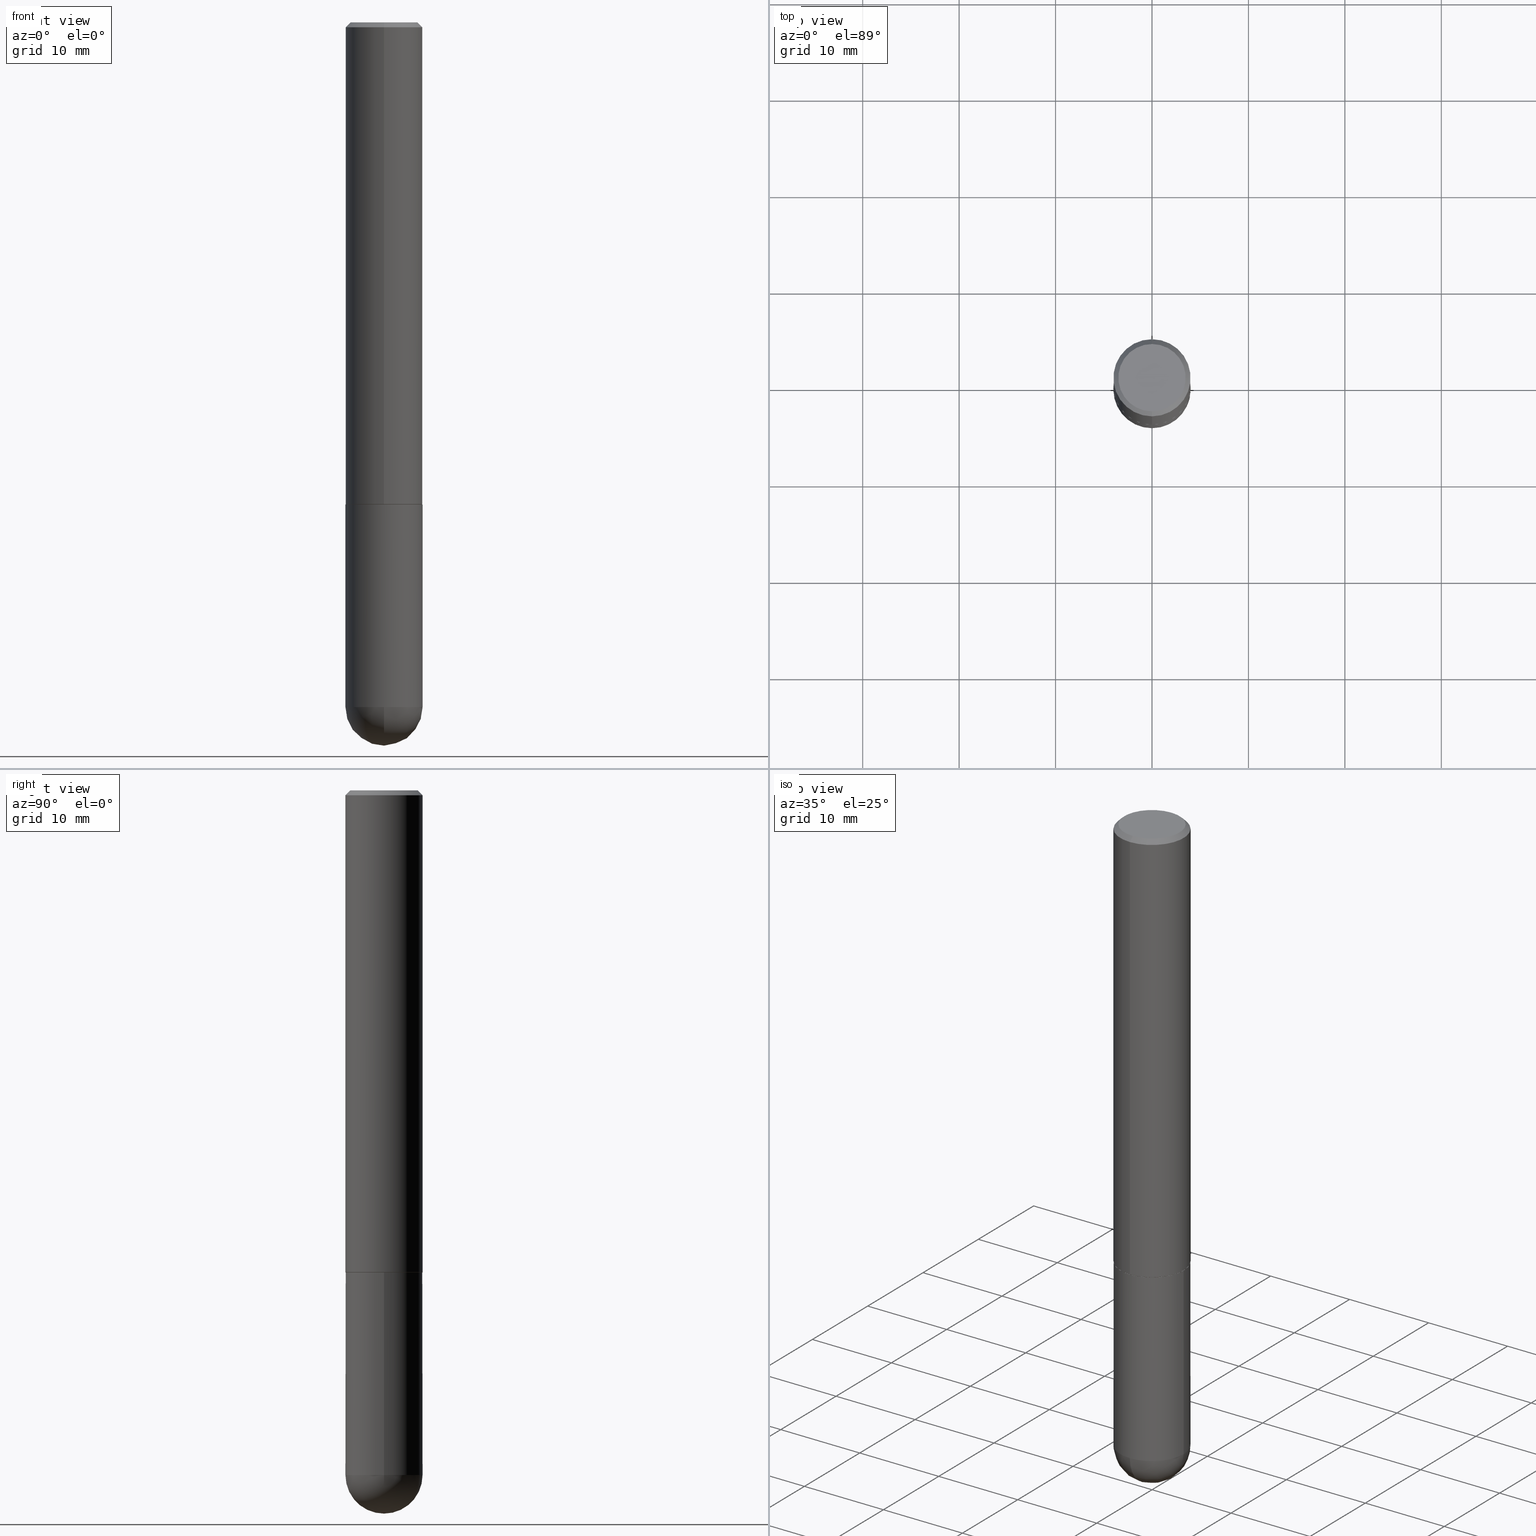
[diagram: canonical four-view strip — front | top / right | iso, engineering-drawing reading convention]
A machine part, canonical four-view strip (front | top / right | iso — engineering-drawing reading convention). The complete STEP part file that produces these views, byte-faithful:
ISO-10303-21;
HEADER;
FILE_DESCRIPTION (( 'STEP AP203' ),
    '1' );
FILE_NAME ('49548.STEP',
    '2024-04-10T12:20:48',
    ( '' ),
    ( '' ),
    'SwSTEP 2.0',
    'SolidWorks 2023',
    '' );
FILE_SCHEMA (( 'CONFIG_CONTROL_DESIGN' ));
ENDSEC;

DATA;
#1 = COORDINATED_UNIVERSAL_TIME_OFFSET ( 5, 0, .BEHIND. ) ;
#2 = EDGE_LOOP ( 'NONE', ( #104, #300, #126, #394 ) ) ;
#3 = EDGE_CURVE ( 'NONE', #317, #253, #392, .T. ) ;
#4 = EDGE_LOOP ( 'NONE', ( #63, #42, #235, #12 ) ) ;
#5 = CARTESIAN_POINT ( 'NONE',  ( 6.896594947516873652E-29, -1.077418437193280573E-14, -2.952799999999999869 ) ) ;
#6 = SECURITY_CLASSIFICATION ( '', '', #347 ) ;
#7 = DIRECTION ( 'NONE',  ( -2.452606242276133797E-29, 3.481260124123203654E-15, 1.000000000000000000 ) ) ;
#8 = EDGE_CURVE ( 'NONE', #360, #367, #322, .T. ) ;
#9 = AXIS2_PLACEMENT_3D ( 'NONE', #14, #293, #10 ) ;
#10 = DIRECTION ( 'NONE',  ( -6.982962677686265922E-15, -1.000000000000000000, 3.469013325287954477E-15 ) ) ;
#11 = DIRECTION ( 'NONE',  ( 1.000000000000000000, -6.982962677686265922E-15, 4.883557194083112340E-29 ) ) ;
#12 = ORIENTED_EDGE ( 'NONE', *, *, #370, .F. ) ;
#13 = ADVANCED_FACE ( 'NONE', ( #278 ), #339, .F. ) ;
#14 = CARTESIAN_POINT ( 'NONE',  ( 4.905212484552274391E-31, -6.962520248246417464E-17, -0.02000000000000003164 ) ) ;
#15 = DIRECTION ( 'NONE',  ( 2.452606242276133237E-29, -3.481260124123204048E-15, -1.000000000000000000 ) ) ;
#16 = PRODUCT_RELATED_PRODUCT_CATEGORY ( 'detail', '', ( #120 ) ) ;
#17 = CARTESIAN_POINT ( 'NONE',  ( 0.000000000000000000, 0.000000000000000000, 0.000000000000000000 ) ) ;
#18 = DIRECTION ( 'NONE',  ( -6.982962677686264344E-15, -1.000000000000000000, 3.481260124123203654E-15 ) ) ;
#19 = CARTESIAN_POINT ( 'NONE',  ( 4.825502781678292621E-29, -6.849379294212400691E-15, -1.967499999999999805 ) ) ;
#20 = PERSON_AND_ORGANIZATION_ROLE ( 'design_supplier' ) ;
#21 = FACE_OUTER_BOUND ( 'NONE', #196, .T. ) ;
#22 = AXIS2_PLACEMENT_3D ( 'NONE', #306, #15, #398 ) ;
#23 = FACE_OUTER_BOUND ( 'NONE', #258, .T. ) ;
#24 = DIRECTION ( 'NONE',  ( -7.105427357601000281E-15, -1.000000000000000000, 0.000000000000000000 ) ) ;
#25 = CARTESIAN_POINT ( 'NONE',  ( 0.000000000000000000, 0.000000000000000000, 0.000000000000000000 ) ) ;
#26 = COORDINATED_UNIVERSAL_TIME_OFFSET ( 5, 0, .BEHIND. ) ;
#27 = DIRECTION ( 'NONE',  ( 1.000000000000000000, -6.982962677686265922E-15, 4.876176775795935232E-29 ) ) ;
#28 = CONICAL_SURFACE ( 'NONE', #145, 0.1564999999999999447, 0.7853981633973970977 ) ;
#29 = VECTOR ( 'NONE', #406, 39.37007874015748143 ) ;
#30 = CARTESIAN_POINT ( 'NONE',  ( -1.092833659057852162E-15, -0.1565000000000068281, -1.968499999999999472 ) ) ;
#31 = ORIENTED_EDGE ( 'NONE', *, *, #175, .T. ) ;
#32 = DATE_AND_TIME ( #356, #292 ) ;
#33 = EDGE_CURVE ( 'NONE', #229, #309, #162, .T. ) ;
#34 = ORIENTED_EDGE ( 'NONE', *, *, #215, .T. ) ;
#35 = CARTESIAN_POINT ( 'NONE',  ( -3.315604375444811306E-45, 4.706210520320814560E-31, 1.351869826592211062E-16 ) ) ;
#36 = ORIENTED_EDGE ( 'NONE', *, *, #154, .F. ) ;
#37 = CIRCLE ( 'NONE', #210, 0.1575000000000001954 ) ;
#38 = DIRECTION ( 'NONE',  ( -2.445468806185136877E-29, 3.491481338843145188E-15, 1.000000000000000000 ) ) ;
#39 = ORIENTED_EDGE ( 'NONE', *, *, #370, .T. ) ;
#40 = APPLICATION_CONTEXT ( 'configuration controlled 3d designs of mechanical parts and assemblies' ) ;
#41 = CARTESIAN_POINT ( 'NONE',  ( 4.827955387920569844E-29, -6.852860554336525962E-15, -1.968500000000000139 ) ) ;
#42 = ORIENTED_EDGE ( 'NONE', *, *, #340, .T. ) ;
#43 = DIRECTION ( 'NONE',  ( -2.452606242276133797E-29, 3.481260124123203654E-15, 1.000000000000000000 ) ) ;
#44 = AXIS2_PLACEMENT_3D ( 'NONE', #132, #263, #241 ) ;
#45 = MANIFOLD_SOLID_BREP ( 'Body-Move/Copy2[2]', #385 ) ;
#46 = AXIS2_PLACEMENT_3D ( 'NONE', #64, #7, #388 ) ;
#47 = ADVANCED_FACE ( 'NONE', ( #85 ), #303, .F. ) ;
#48 = CARTESIAN_POINT ( 'NONE',  ( 0.000000000000000000, 0.000000000000000000, 0.000000000000000000 ) ) ;
#49 = DIRECTION ( 'NONE',  ( 1.000000000000000000, 0.000000000000000000, 0.000000000000000000 ) ) ;
#50 = DIRECTION ( 'NONE',  ( -1.000000000000000000, 6.982962677686265922E-15, -4.883557194083112901E-29 ) ) ;
#51 = DIRECTION ( 'NONE',  ( -1.000000000000000000, 7.105427357601001070E-15, -4.926315508542082329E-29 ) ) ;
#52 = VECTOR ( 'NONE', #305, 39.37007874015748143 ) ;
#53 = CARTESIAN_POINT ( 'NONE',  ( -0.1575000000000000011, -7.197254592168330052E-15, -1.968499999999999694 ) ) ;
#54 = PERSON_AND_ORGANIZATION ( #66, #353 ) ;
#55 = LINE ( 'NONE', #222, #69 ) ;
#56 = CC_DESIGN_PERSON_AND_ORGANIZATION_ASSIGNMENT ( #54, #185, ( #6 ) ) ;
#57 = CARTESIAN_POINT ( 'NONE',  ( -1.011923454671299856E-15, -0.1374999999999998446, 6.138602497261609726E-16 ) ) ;
#58 = CALENDAR_DATE ( 2024, 10, 4 ) ;
#59 = ORIENTED_EDGE ( 'NONE', *, *, #154, .T. ) ;
#60 = AXIS2_PLACEMENT_3D ( 'NONE', #279, #177, #148 ) ;
#61 = EDGE_CURVE ( 'NONE', #240, #298, #221, .T. ) ;
#62 = LINE ( 'NONE', #30, #78 ) ;
#63 = ORIENTED_EDGE ( 'NONE', *, *, #3, .F. ) ;
#64 = CARTESIAN_POINT ( 'NONE',  ( 4.827955387920569844E-29, -6.852860554336525962E-15, -1.968500000000000139 ) ) ;
#65 = CC_DESIGN_DATE_AND_TIME_ASSIGNMENT ( #151, #155, ( #6 ) ) ;
#66 = PERSON ( 'UNSPECIFIED', 'UNSPECIFIED', 'UNSPECIFIED', ('UNSPECIFIED'), ('UNSPECIFIED'), ('UNSPECIFIED') ) ;
#67 = ORIENTED_EDGE ( 'NONE', *, *, #200, .F. ) ;
#68 = CARTESIAN_POINT ( 'NONE',  ( 0.1575000000000000011, -9.416176022726072770E-15, -2.795299999999999674 ) ) ;
#69 = VECTOR ( 'NONE', #116, 39.37007874015748143 ) ;
#70 = APPROVAL_DATE_TIME ( #32, #157 ) ;
#71 = CARTESIAN_POINT ( 'NONE',  ( 4.905212484552274391E-31, -6.962520248246417464E-17, -0.02000000000000003164 ) ) ;
#72 = EDGE_LOOP ( 'NONE', ( #391, #204, #92, #36 ) ) ;
#73 = DIRECTION ( 'NONE',  ( -2.445468806185136597E-29, 3.491481338843145583E-15, 1.000000000000000000 ) ) ;
#74 = APPLICATION_PROTOCOL_DEFINITION ( 'international standard', 'config_control_design', 1994, #84 ) ;
#75 = ORIENTED_EDGE ( 'NONE', *, *, #61, .T. ) ;
#76 = ORIENTED_EDGE ( 'NONE', *, *, #61, .F. ) ;
#77 = AXIS2_PLACEMENT_3D ( 'NONE', #374, #218, #393 ) ;
#78 = VECTOR ( 'NONE', #125, 39.37007874015748143 ) ;
#79 = ADVANCED_FACE ( 'NONE', ( #268 ), #275, .T. ) ;
#80 = DIRECTION ( 'NONE',  ( -2.445468806185136597E-29, 3.491481338843145583E-15, 1.000000000000000000 ) ) ;
#81 = CARTESIAN_POINT ( 'NONE',  ( 0.000000000000000000, 0.000000000000000000, 0.000000000000000000 ) ) ;
#82 = EDGE_LOOP ( 'NONE', ( #362, #384, #232, #99, #118 ) ) ;
#83 = CARTESIAN_POINT ( 'NONE',  ( 6.504699176015425459E-29, -1.023392015460829390E-14, -2.795299999999999674 ) ) ;
#84 = APPLICATION_CONTEXT ( 'configuration controlled 3d designs of mechanical parts and assemblies' ) ;
#85 = FACE_OUTER_BOUND ( 'NONE', #335, .T. ) ;
#86 = CYLINDRICAL_SURFACE ( 'NONE', #291, 0.1575000000000000844 ) ;
#87 = PERSON_AND_ORGANIZATION ( #66, #353 ) ;
#88 = CLOSED_SHELL ( 'NONE', ( #256, #327, #79, #164, #181 ) ) ;
#89 = CIRCLE ( 'NONE', #123, 0.1575000000000000011 ) ;
#90 = DIRECTION ( 'NONE',  ( -6.982962677686265922E-15, -1.000000000000000000, 3.469013325287948955E-15 ) ) ;
#91 = DIRECTION ( 'NONE',  ( -2.452606242276133797E-29, 3.481260124123203654E-15, 1.000000000000000000 ) ) ;
#92 = ORIENTED_EDGE ( 'NONE', *, *, #290, .F. ) ;
#93 = SHAPE_DEFINITION_REPRESENTATION ( #349, #142 ) ;
#94 = ORIENTED_EDGE ( 'NONE', *, *, #3, .T. ) ;
#95 = AXIS2_PLACEMENT_3D ( 'NONE', #71, #332, #369 ) ;
#96 = CC_DESIGN_APPROVAL ( #239, ( #130 ) ) ;
#97 = ORIENTED_EDGE ( 'NONE', *, *, #215, .F. ) ;
#98 = DIRECTION ( 'NONE',  ( -2.452606242276133797E-29, 3.481260124123203654E-15, 1.000000000000000000 ) ) ;
#99 = ORIENTED_EDGE ( 'NONE', *, *, #159, .T. ) ;
#100 = CIRCLE ( 'NONE', #265, 0.1575000000000000011 ) ;
#101 = PLANE ( 'NONE',  #283 ) ;
#102 = CARTESIAN_POINT ( 'NONE',  ( 1.099816621735634812E-15, 0.1574999999999931177, -1.968500000000000361 ) ) ;
#103 = AXIS2_PLACEMENT_3D ( 'NONE', #25, #251, #27 ) ;
#104 = ORIENTED_EDGE ( 'NONE', *, *, #8, .F. ) ;
#105 = DIRECTION ( 'NONE',  ( -1.000000000000000000, 6.982962677686265922E-15, -4.876176775795935793E-29 ) ) ;
#106 = PERSON_AND_ORGANIZATION_ROLE ( 'design_owner' ) ;
#107 = DIRECTION ( 'NONE',  ( -4.851104656540959542E-15, -0.7071067811865493491, -0.7071067811865457964 ) ) ;
#108 = CC_DESIGN_SECURITY_CLASSIFICATION ( #6, ( #130 ) ) ;
#109 = DIRECTION ( 'NONE',  ( -2.452606242276133797E-29, 3.481260124123203654E-15, 1.000000000000000000 ) ) ;
#110 = ORIENTED_EDGE ( 'NONE', *, *, #200, .T. ) ;
#111 = ADVANCED_FACE ( 'NONE', ( #21 ), #301, .T. ) ;
#112 = DIRECTION ( 'NONE',  ( -6.982962677686267499E-15, -1.000000000000000000, 3.491179544618867914E-15 ) ) ;
#113 = APPROVAL_STATUS ( 'not_yet_approved' ) ;
#114 = CC_DESIGN_PERSON_AND_ORGANIZATION_ASSIGNMENT ( #213, #277, ( #264 ) ) ;
#115 = FACE_OUTER_BOUND ( 'NONE', #193, .T. ) ;
#116 = DIRECTION ( 'NONE',  ( -2.452606242276134078E-29, 3.481260124123204048E-15, 1.000000000000000000 ) ) ;
#117 = ADVANCED_FACE ( 'NONE', ( #134 ), #203, .T. ) ;
#118 = ORIENTED_EDGE ( 'NONE', *, *, #402, .F. ) ;
#119 = DIRECTION ( 'NONE',  ( -2.445468806185136597E-29, 3.491481338843145583E-15, 1.000000000000000000 ) ) ;
#120 = PRODUCT ( '49548', '49548', '', ( #206 ) ) ;
#121 = LENGTH_MEASURE_WITH_UNIT ( LENGTH_MEASURE( 0.02539999999999999897 ), #156 );
#122 = ORIENTED_EDGE ( 'NONE', *, *, #383, .T. ) ;
#123 = AXIS2_PLACEMENT_3D ( 'NONE', #285, #119, #319 ) ;
#124 = ORIENTED_EDGE ( 'NONE', *, *, #131, .F. ) ;
#125 = DIRECTION ( 'NONE',  ( -4.937700262164294818E-15, -0.7071067811865088260, 0.7071067811865862085 ) ) ;
#126 = ORIENTED_EDGE ( 'NONE', *, *, #175, .F. ) ;
#127 = CC_DESIGN_PERSON_AND_ORGANIZATION_ASSIGNMENT ( #87, #20, ( #130 ) ) ;
#128 = VERTEX_POINT ( 'NONE', #205 ) ;
#129 = VECTOR ( 'NONE', #107, 39.37007874015748143 ) ;
#130 = PRODUCT_DEFINITION_FORMATION_WITH_SPECIFIED_SOURCE ( 'ANY', '', #120, .NOT_KNOWN. ) ;
#131 = EDGE_CURVE ( 'NONE', #309, #229, #250, .T. ) ;
#132 = CARTESIAN_POINT ( 'NONE',  ( 6.835818953929311707E-29, -9.759737786468243605E-15, -2.795299999999999674 ) ) ;
#133 = ADVANCED_FACE ( 'NONE', ( #139 ), #352, .T. ) ;
#134 = FACE_OUTER_BOUND ( 'NONE', #294, .T. ) ;
#135 = EDGE_LOOP ( 'NONE', ( #97, #110, #323, #191 ) ) ;
#136 = CIRCLE ( 'NONE', #44, 0.1575000000000000011 ) ;
#137 = DIRECTION ( 'NONE',  ( 1.000000000000000000, -6.982962677686265922E-15, 4.876176775795935232E-29 ) ) ;
#138 = CC_DESIGN_APPROVAL ( #195, ( #264 ) ) ;
#139 = FACE_OUTER_BOUND ( 'NONE', #4, .T. ) ;
#140 = DIRECTION ( 'NONE',  ( -2.452606242276133797E-29, 3.481260124123203654E-15, 1.000000000000000000 ) ) ;
#141 = DIRECTION ( 'NONE',  ( -6.982962677686265922E-15, -1.000000000000000000, 3.481260124123204048E-15 ) ) ;
#142 = ADVANCED_BREP_SHAPE_REPRESENTATION ( '49548', ( #326, #45, #153 ), #173 ) ;
#143 = DIRECTION ( 'NONE',  ( -6.982962677686265922E-15, -1.000000000000000000, 3.469013325287954477E-15 ) ) ;
#144 = DIRECTION ( 'NONE',  ( -2.445468806185136597E-29, 3.491481338843145583E-15, 1.000000000000000000 ) ) ;
#145 = AXIS2_PLACEMENT_3D ( 'NONE', #341, #91, #112 ) ;
#146 = VECTOR ( 'NONE', #161, 39.37007874015748143 ) ;
#147 = DIRECTION ( 'NONE',  ( -6.982962677686267499E-15, -1.000000000000000000, 3.491179544618867914E-15 ) ) ;
#148 = DIRECTION ( 'NONE',  ( 1.000000000000000000, -6.982962677686261977E-15, 0.000000000000000000 ) ) ;
#149 = DIRECTION ( 'NONE',  ( -2.452606242276133797E-29, 3.481260124123203654E-15, 1.000000000000000000 ) ) ;
#150 = LINE ( 'NONE', #223, #182 ) ;
#151 = DATE_AND_TIME ( #313, #315 ) ;
#152 = AXIS2_PLACEMENT_3D ( 'NONE', #295, #11, #311 ) ;
#153 = AXIS2_PLACEMENT_3D ( 'NONE', #81, #244, #49 ) ;
#154 = EDGE_CURVE ( 'NONE', #128, #289, #136, .T. ) ;
#155 = DATE_TIME_ROLE ( 'classification_date' ) ;
#156 =( LENGTH_UNIT ( ) NAMED_UNIT ( * ) SI_UNIT ( $, .METRE. ) );
#157 = APPROVAL ( #381, 'UNSPECIFIED' ) ;
#158 = ORIENTED_EDGE ( 'NONE', *, *, #364, .T. ) ;
#159 = EDGE_CURVE ( 'NONE', #351, #160, #209, .T. ) ;
#160 = VERTEX_POINT ( 'NONE', #260 ) ;
#161 = DIRECTION ( 'NONE',  ( 4.937700262164543309E-15, 0.7071067811865444641, -0.7071067811865506814 ) ) ;
#162 = CIRCLE ( 'NONE', #371, 0.1574999999999999456 ) ;
#163 = AXIS2_PLACEMENT_3D ( 'NONE', #35, #98, #231 ) ;
#164 = ADVANCED_FACE ( 'NONE', ( #396 ), #101, .F. ) ;
#165 = CARTESIAN_POINT ( 'NONE',  ( 6.835818953929311707E-29, -9.759737786468243605E-15, -2.795299999999999674 ) ) ;
#166 = ORIENTED_EDGE ( 'NONE', *, *, #280, .T. ) ;
#167 = DIRECTION ( 'NONE',  ( 2.452606242276133797E-29, -3.481260124123203654E-15, -1.000000000000000000 ) ) ;
#168 = CARTESIAN_POINT ( 'NONE',  ( 0.1575000000000000011, -1.099816621735586889E-15, 7.679978421878598033E-30 ) ) ;
#169 = APPROVAL_STATUS ( 'not_yet_approved' ) ;
#170 = VERTEX_POINT ( 'NONE', #201 ) ;
#171 = CIRCLE ( 'NONE', #60, 0.1575000000000000011 ) ;
#172 = DIRECTION ( 'NONE',  ( -6.982962677686267499E-15, -1.000000000000000000, 3.491179544618867914E-15 ) ) ;
#173 =( GEOMETRIC_REPRESENTATION_CONTEXT ( 3 ) GLOBAL_UNCERTAINTY_ASSIGNED_CONTEXT ( ( #334 ) ) GLOBAL_UNIT_ASSIGNED_CONTEXT ( ( #254, #287, #227 ) ) REPRESENTATION_CONTEXT ( 'NONE', 'WORKASPACE' ) );
#174 = CARTESIAN_POINT ( 'NONE',  ( -3.315604375444811306E-45, 4.706210520320814560E-31, 1.351869826592211062E-16 ) ) ;
#175 = EDGE_CURVE ( 'NONE', #351, #128, #100, .T. ) ;
#176 = ORIENTED_EDGE ( 'NONE', *, *, #402, .T. ) ;
#177 = DIRECTION ( 'NONE',  ( -2.445468806185136597E-29, 3.491481338843145583E-15, 1.000000000000000000 ) ) ;
#178 = APPROVAL_ROLE ( '' ) ;
#179 = DIRECTION ( 'NONE',  ( -6.982962677686265922E-15, -1.000000000000000000, 3.481260124123204048E-15 ) ) ;
#180 = CYLINDRICAL_SURFACE ( 'NONE', #103, 0.1575000000000000011 ) ;
#181 = ADVANCED_FACE ( 'NONE', ( #365 ), #237, .T. ) ;
#182 = VECTOR ( 'NONE', #372, 39.37007874015748854 ) ;
#183 = LOCAL_TIME ( 8, 20, 48.00000000000000000, #379 ) ;
#184 = LINE ( 'NONE', #397, #129 ) ;
#185 = PERSON_AND_ORGANIZATION_ROLE ( 'classification_officer' ) ;
#186 = DIRECTION ( 'NONE',  ( 1.000000000000000000, -6.982962677686261977E-15, 0.000000000000000000 ) ) ;
#187 = DATE_AND_TIME ( #220, #183 ) ;
#188 = CARTESIAN_POINT ( 'NONE',  ( -0.1575000000000000011, 1.119104808822157801E-15, -7.747322767151475583E-30 ) ) ;
#189 = APPROVAL_DATE_TIME ( #308, #195 ) ;
#190 = CIRCLE ( 'NONE', #343, 0.1575000000000000011 ) ;
#191 = ORIENTED_EDGE ( 'NONE', *, *, #33, .F. ) ;
#192 = CARTESIAN_POINT ( 'NONE',  ( -1.119104808822091931E-15, -0.1575000000000101319, -2.795299999999998786 ) ) ;
#193 = EDGE_LOOP ( 'NONE', ( #59, #233, #412, #320, #31 ) ) ;
#194 = EDGE_LOOP ( 'NONE', ( #76, #329 ) ) ;
#195 = APPROVAL ( #169, 'UNSPECIFIED' ) ;
#196 = EDGE_LOOP ( 'NONE', ( #261, #230, #39, #387 ) ) ;
#197 = AXIS2_PLACEMENT_3D ( 'NONE', #390, #73, #137 ) ;
#198 = CARTESIAN_POINT ( 'NONE',  ( -1.099816621735539951E-15, -0.1575000000000070510, -1.967499999999999138 ) ) ;
#199 = EDGE_CURVE ( 'NONE', #360, #128, #366, .T. ) ;
#200 = EDGE_CURVE ( 'NONE', #170, #354, #399, .T. ) ;
#201 = CARTESIAN_POINT ( 'NONE',  ( 1.119104808822183241E-15, 0.1574999999999933398, -1.967500000000000249 ) ) ;
#202 = ORIENTED_EDGE ( 'NONE', *, *, #364, .F. ) ;
#203 = CONICAL_SURFACE ( 'NONE', #255, 0.1564999999999999447, 0.7853981633973970977 ) ;
#204 = ORIENTED_EDGE ( 'NONE', *, *, #8, .T. ) ;
#205 = CARTESIAN_POINT ( 'NONE',  ( 1.099816621735654731E-15, 0.1574999999999901201, -2.795300000000000118 ) ) ;
#206 = MECHANICAL_CONTEXT ( 'NONE', #40, 'mechanical' ) ;
#207 = CC_DESIGN_PERSON_AND_ORGANIZATION_ASSIGNMENT ( #299, #106, ( #120 ) ) ;
#208 = AXIS2_PLACEMENT_3D ( 'NONE', #380, #144, #186 ) ;
#209 = LINE ( 'NONE', #168, #272 ) ;
#210 = AXIS2_PLACEMENT_3D ( 'NONE', #310, #149, #90 ) ;
#211 = CARTESIAN_POINT ( 'NONE',  ( 4.905212484552274391E-31, -6.962520248246417464E-17, -0.02000000000000003164 ) ) ;
#212 = LINE ( 'NONE', #276, #52 ) ;
#213 = PERSON_AND_ORGANIZATION ( #66, #353 ) ;
#214 = ORIENTED_EDGE ( 'NONE', *, *, #286, .F. ) ;
#215 = EDGE_CURVE ( 'NONE', #170, #229, #55, .T. ) ;
#216 = CARTESIAN_POINT ( 'NONE',  ( -0.1575000000000000011, -7.197254592168330052E-15, -2.795299999999999674 ) ) ;
#217 = APPROVAL_ROLE ( '' ) ;
#218 = DIRECTION ( 'NONE',  ( -1.000000000000000000, 6.982962677686265922E-15, -4.883557194083112901E-29 ) ) ;
#219 = CARTESIAN_POINT ( 'NONE',  ( 4.813905344975440714E-29, -6.872981015512730918E-15, -1.968499999999999694 ) ) ;
#220 = CALENDAR_DATE ( 2024, 10, 4 ) ;
#221 = CIRCLE ( 'NONE', #358, 0.1564999999999999447 ) ;
#222 = CARTESIAN_POINT ( 'NONE',  ( 1.119104808822158195E-15, 0.1575000000000000844, -5.482984695494049531E-16 ) ) ;
#223 = CARTESIAN_POINT ( 'NONE',  ( 1.111999381464604519E-15, 0.1564999999999930891, -1.968500000000000583 ) ) ;
#224 = APPLICATION_PROTOCOL_DEFINITION ( 'international standard', 'config_control_design', 1994, #40 ) ;
#225 = AXIS2_PLACEMENT_3D ( 'NONE', #174, #245, #18 ) ;
#226 = ORIENTED_EDGE ( 'NONE', *, *, #346, .F. ) ;
#227 =( NAMED_UNIT ( * ) SI_UNIT ( $, .STERADIAN. ) SOLID_ANGLE_UNIT ( ) );
#228 = EDGE_LOOP ( 'NONE', ( #238, #122, #158, #67 ) ) ;
#229 = VERTEX_POINT ( 'NONE', #348 ) ;
#230 = ORIENTED_EDGE ( 'NONE', *, *, #350, .F. ) ;
#231 = DIRECTION ( 'NONE',  ( -6.982962677686264344E-15, -1.000000000000000000, 3.481260124123203654E-15 ) ) ;
#232 = ORIENTED_EDGE ( 'NONE', *, *, #270, .T. ) ;
#233 = ORIENTED_EDGE ( 'NONE', *, *, #318, .T. ) ;
#234 = DIRECTION ( 'NONE',  ( -2.445468806185136597E-29, 3.491481338843145583E-15, 1.000000000000000000 ) ) ;
#235 = ORIENTED_EDGE ( 'NONE', *, *, #131, .T. ) ;
#236 = AXIS2_PLACEMENT_3D ( 'NONE', #48, #109, #269 ) ;
#237 = CYLINDRICAL_SURFACE ( 'NONE', #197, 0.1575000000000000011 ) ;
#238 = ORIENTED_EDGE ( 'NONE', *, *, #259, .F. ) ;
#239 = APPROVAL ( #113, 'UNSPECIFIED' ) ;
#240 = VERTEX_POINT ( 'NONE', #247 ) ;
#241 = DIRECTION ( 'NONE',  ( 1.000000000000000000, -6.982962677686261977E-15, 0.000000000000000000 ) ) ;
#242 = CARTESIAN_POINT ( 'NONE',  ( 4.827955387920569844E-29, -6.852860554336525962E-15, -1.968500000000000139 ) ) ;
#243 = CARTESIAN_POINT ( 'NONE',  ( 1.115552095143405811E-15, 0.1564999999999930891, -1.968500000000000583 ) ) ;
#244 = DIRECTION ( 'NONE',  ( 0.000000000000000000, 0.000000000000000000, 1.000000000000000000 ) ) ;
#245 = DIRECTION ( 'NONE',  ( -2.452606242276133797E-29, 3.481260124123203654E-15, 1.000000000000000000 ) ) ;
#246 = CARTESIAN_POINT ( 'NONE',  ( -1.080528434649015385E-15, -0.1575000000000000289, -0.01999999999999948347 ) ) ;
#247 = CARTESIAN_POINT ( 'NONE',  ( -1.092833659057852162E-15, -0.1565000000000068281, -1.968499999999999472 ) ) ;
#248 = APPROVAL_DATE_TIME ( #187, #239 ) ;
#249 = SPHERICAL_SURFACE ( 'NONE', #314, 0.1575000000000003064 ) ;
#250 = CIRCLE ( 'NONE', #9, 0.1574999999999999456 ) ;
#251 = DIRECTION ( 'NONE',  ( -2.445468806185136597E-29, 3.491481338843145583E-15, 1.000000000000000000 ) ) ;
#252 = APPROVAL_ROLE ( '' ) ;
#253 = VERTEX_POINT ( 'NONE', #307 ) ;
#254 =( CONVERSION_BASED_UNIT ( 'INCH', #121 ) LENGTH_UNIT ( ) NAMED_UNIT ( #395 ) );
#255 = AXIS2_PLACEMENT_3D ( 'NONE', #41, #43, #172 ) ;
#256 = ADVANCED_FACE ( 'NONE', ( #115 ), #180, .T. ) ;
#257 = EDGE_LOOP ( 'NONE', ( #166, #176 ) ) ;
#258 = EDGE_LOOP ( 'NONE', ( #355, #34, #124, #214 ) ) ;
#259 = EDGE_CURVE ( 'NONE', #298, #170, #150, .T. ) ;
#260 = CARTESIAN_POINT ( 'NONE',  ( 0.1575000000000000011, -7.972797637248318399E-15, -1.968499999999999694 ) ) ;
#261 = ORIENTED_EDGE ( 'NONE', *, *, #340, .F. ) ;
#262 = DIRECTION ( 'NONE',  ( 1.000000000000000000, -6.982962677686261977E-15, 0.000000000000000000 ) ) ;
#263 = DIRECTION ( 'NONE',  ( -2.445468806185136597E-29, 3.491481338843145583E-15, 1.000000000000000000 ) ) ;
#264 = PRODUCT_DEFINITION ( 'UNKNOWN', '', #130, #382 ) ;
#265 = AXIS2_PLACEMENT_3D ( 'NONE', #165, #234, #262 ) ;
#266 = CARTESIAN_POINT ( 'NONE',  ( 4.905212484552274391E-31, -6.962520248246417464E-17, -0.02000000000000003164 ) ) ;
#267 = ADVANCED_FACE ( 'NONE', ( #23 ), #400, .T. ) ;
#268 = FACE_OUTER_BOUND ( 'NONE', #2, .T. ) ;
#269 = DIRECTION ( 'NONE',  ( -6.982962677686265922E-15, -1.000000000000000000, 3.481260124123204048E-15 ) ) ;
#270 = EDGE_CURVE ( 'NONE', #367, #351, #171, .T. ) ;
#271 = CARTESIAN_POINT ( 'NONE',  ( 6.504699176015425459E-29, -1.023392015460829390E-14, -2.795299999999999674 ) ) ;
#272 = VECTOR ( 'NONE', #38, 39.37007874015748143 ) ;
#273 = APPROVAL_PERSON_ORGANIZATION ( #297, #195, #217 ) ;
#274 = DIRECTION ( 'NONE',  ( -6.982962677686265922E-15, -1.000000000000000000, 3.469013325287948955E-15 ) ) ;
#275 = SPHERICAL_SURFACE ( 'NONE', #77, 0.1575000000000003064 ) ;
#276 = CARTESIAN_POINT ( 'NONE',  ( -1.099816621735587480E-15, -0.1575000000000000844, 5.482984695494049531E-16 ) ) ;
#277 = PERSON_AND_ORGANIZATION_ROLE ( 'creator' ) ;
#278 = FACE_OUTER_BOUND ( 'NONE', #194, .T. ) ;
#279 = CARTESIAN_POINT ( 'NONE',  ( 6.835818953929311707E-29, -9.759737786468243605E-15, -2.795299999999999674 ) ) ;
#280 = EDGE_CURVE ( 'NONE', #160, #331, #190, .T. ) ;
#281 = DIRECTION ( 'NONE',  ( 1.000000000000000000, -6.982962677686268288E-15, 0.000000000000000000 ) ) ;
#282 = PERSON_AND_ORGANIZATION_ROLE ( 'creator' ) ;
#283 = AXIS2_PLACEMENT_3D ( 'NONE', #102, #363, #105 ) ;
#284 = CIRCLE ( 'NONE', #163, 0.1374999999999998446 ) ;
#285 = CARTESIAN_POINT ( 'NONE',  ( 4.813905344975440714E-29, -6.872981015512730918E-15, -1.968499999999999694 ) ) ;
#286 = EDGE_CURVE ( 'NONE', #354, #309, #212, .T. ) ;
#287 =( NAMED_UNIT ( * ) PLANE_ANGLE_UNIT ( ) SI_UNIT ( $, .RADIAN. ) );
#288 = AXIS2_PLACEMENT_3D ( 'NONE', #242, #342, #179 ) ;
#289 = VERTEX_POINT ( 'NONE', #216 ) ;
#290 = EDGE_CURVE ( 'NONE', #289, #367, #389, .T. ) ;
#291 = AXIS2_PLACEMENT_3D ( 'NONE', #17, #345, #141 ) ;
#292 = LOCAL_TIME ( 8, 20, 48.00000000000000000, #321 ) ;
#293 = DIRECTION ( 'NONE',  ( -2.452606242276133797E-29, 3.481260124123203654E-15, 1.000000000000000000 ) ) ;
#294 = EDGE_LOOP ( 'NONE', ( #75, #333, #226, #202 ) ) ;
#295 = CARTESIAN_POINT ( 'NONE',  ( 6.504699176015425459E-29, -1.023392015460829390E-14, -2.795299999999999674 ) ) ;
#296 = ADVANCED_FACE ( 'NONE', ( #410 ), #28, .T. ) ;
#297 = PERSON_AND_ORGANIZATION ( #66, #353 ) ;
#298 = VERTEX_POINT ( 'NONE', #243 ) ;
#299 = PERSON_AND_ORGANIZATION ( #66, #353 ) ;
#300 = ORIENTED_EDGE ( 'NONE', *, *, #199, .T. ) ;
#301 = CONICAL_SURFACE ( 'NONE', #95, 0.1574999999999999456, 0.7853981633974473908 ) ;
#302 = APPROVAL_PERSON_ORGANIZATION ( #411, #157, #178 ) ;
#303 = PLANE ( 'NONE',  #22 ) ;
#304 = DIRECTION ( 'NONE',  ( -2.452606242276133797E-29, 3.481260124123203654E-15, 1.000000000000000000 ) ) ;
#305 = DIRECTION ( 'NONE',  ( -2.452606242276134078E-29, 3.481260124123204048E-15, 1.000000000000000000 ) ) ;
#306 = CARTESIAN_POINT ( 'NONE',  ( 9.601573681818602922E-16, 0.1374999999999998446, -4.110797757373293625E-16 ) ) ;
#307 = CARTESIAN_POINT ( 'NONE',  ( 1.029986994958723590E-15, 0.1374999999999998446, -3.434862844077188094E-16 ) ) ;
#308 = DATE_AND_TIME ( #58, #409 ) ;
#309 = VERTEX_POINT ( 'NONE', #246 ) ;
#310 = CARTESIAN_POINT ( 'NONE',  ( 4.825502781678292621E-29, -6.849379294212400691E-15, -1.967499999999999805 ) ) ;
#311 = DIRECTION ( 'NONE',  ( 6.982962677686265133E-15, 1.000000000000000000, 0.000000000000000000 ) ) ;
#312 = DATE_TIME_ROLE ( 'creation_date' ) ;
#313 = CALENDAR_DATE ( 2024, 10, 4 ) ;
#314 = AXIS2_PLACEMENT_3D ( 'NONE', #83, #50, #375 ) ;
#315 = LOCAL_TIME ( 8, 20, 48.00000000000000000, #26 ) ;
#316 = LOCAL_TIME ( 8, 20, 48.00000000000000000, #401 ) ;
#317 = VERTEX_POINT ( 'NONE', #57 ) ;
#318 = EDGE_CURVE ( 'NONE', #289, #331, #404, .T. ) ;
#319 = DIRECTION ( 'NONE',  ( 1.000000000000000000, -6.982962677686268288E-15, 0.000000000000000000 ) ) ;
#320 = ORIENTED_EDGE ( 'NONE', *, *, #159, .F. ) ;
#321 = COORDINATED_UNIVERSAL_TIME_OFFSET ( 5, 0, .BEHIND. ) ;
#322 = CIRCLE ( 'NONE', #408, 0.1575000000000003064 ) ;
#323 = ORIENTED_EDGE ( 'NONE', *, *, #286, .T. ) ;
#324 = LINE ( 'NONE', #361, #146 ) ;
#325 = ORIENTED_EDGE ( 'NONE', *, *, #350, .T. ) ;
#326 = MANIFOLD_SOLID_BREP ( 'Body-Move/Copy2[1]', #88 ) ;
#327 = ADVANCED_FACE ( 'NONE', ( #373 ), #249, .T. ) ;
#328 = AXIS2_PLACEMENT_3D ( 'NONE', #19, #337, #274 ) ;
#329 = ORIENTED_EDGE ( 'NONE', *, *, #383, .F. ) ;
#330 = ADVANCED_FACE ( 'NONE', ( #378 ), #86, .T. ) ;
#331 = VERTEX_POINT ( 'NONE', #53 ) ;
#332 = DIRECTION ( 'NONE',  ( 2.452606242276133797E-29, -3.481260124123203654E-15, -1.000000000000000000 ) ) ;
#333 = ORIENTED_EDGE ( 'NONE', *, *, #259, .T. ) ;
#334 = UNCERTAINTY_MEASURE_WITH_UNIT (LENGTH_MEASURE( 1.000000000000000082E-05 ), #254, 'distance_accuracy_value', 'NONE');
#335 = EDGE_LOOP ( 'NONE', ( #325, #94 ) ) ;
#336 = AXIS2_PLACEMENT_3D ( 'NONE', #266, #167, #368 ) ;
#337 = DIRECTION ( 'NONE',  ( -2.452606242276133797E-29, 3.481260124123203654E-15, 1.000000000000000000 ) ) ;
#338 = DATE_AND_TIME ( #407, #316 ) ;
#339 = PLANE ( 'NONE',  #288 ) ;
#340 = EDGE_CURVE ( 'NONE', #317, #309, #184, .T. ) ;
#341 = CARTESIAN_POINT ( 'NONE',  ( 4.827955387920569844E-29, -6.852860554336525962E-15, -1.968500000000000139 ) ) ;
#342 = DIRECTION ( 'NONE',  ( -2.452606242276133237E-29, 3.481260124123204048E-15, 1.000000000000000000 ) ) ;
#343 = AXIS2_PLACEMENT_3D ( 'NONE', #219, #80, #281 ) ;
#344 = CC_DESIGN_APPROVAL ( #157, ( #6 ) ) ;
#345 = DIRECTION ( 'NONE',  ( -2.452606242276133797E-29, 3.481260124123203654E-15, 1.000000000000000000 ) ) ;
#346 = EDGE_CURVE ( 'NONE', #354, #170, #37, .T. ) ;
#347 = SECURITY_CLASSIFICATION_LEVEL ( 'unclassified' ) ;
#348 = CARTESIAN_POINT ( 'NONE',  ( 1.099816621735586889E-15, 0.1574999999999998901, -0.02000000000000057634 ) ) ;
#349 = PRODUCT_DEFINITION_SHAPE ( 'NONE', 'NONE',  #264 ) ;
#350 = EDGE_CURVE ( 'NONE', #253, #317, #284, .T. ) ;
#351 = VERTEX_POINT ( 'NONE', #68 ) ;
#352 = CONICAL_SURFACE ( 'NONE', #336, 0.1574999999999999456, 0.7853981633974473908 ) ;
#353 = ORGANIZATION ( 'UNSPECIFIED', 'UNSPECIFIED', '' ) ;
#354 = VERTEX_POINT ( 'NONE', #198 ) ;
#355 = ORIENTED_EDGE ( 'NONE', *, *, #346, .T. ) ;
#356 = CALENDAR_DATE ( 2024, 10, 4 ) ;
#357 = CC_DESIGN_PERSON_AND_ORGANIZATION_ASSIGNMENT ( #376, #282, ( #130 ) ) ;
#358 = AXIS2_PLACEMENT_3D ( 'NONE', #403, #140, #147 ) ;
#359 = APPROVAL_PERSON_ORGANIZATION ( #405, #239, #252 ) ;
#360 = VERTEX_POINT ( 'NONE', #5 ) ;
#361 = CARTESIAN_POINT ( 'NONE',  ( 1.099816621735586889E-15, 0.1574999999999998901, -0.02000000000000057634 ) ) ;
#362 = ORIENTED_EDGE ( 'NONE', *, *, #318, .F. ) ;
#363 = DIRECTION ( 'NONE',  ( 2.438088387897960049E-29, -3.491481338843145188E-15, -1.000000000000000000 ) ) ;
#364 = EDGE_CURVE ( 'NONE', #240, #354, #62, .T. ) ;
#365 = FACE_OUTER_BOUND ( 'NONE', #82, .T. ) ;
#366 = CIRCLE ( 'NONE', #152, 0.1575000000000003064 ) ;
#367 = VERTEX_POINT ( 'NONE', #192 ) ;
#368 = DIRECTION ( 'NONE',  ( 6.982962677686265922E-15, 1.000000000000000000, -3.469013325287954477E-15 ) ) ;
#369 = DIRECTION ( 'NONE',  ( 6.982962677686265922E-15, 1.000000000000000000, -3.469013325287954477E-15 ) ) ;
#370 = EDGE_CURVE ( 'NONE', #253, #229, #324, .T. ) ;
#371 = AXIS2_PLACEMENT_3D ( 'NONE', #211, #304, #143 ) ;
#372 = DIRECTION ( 'NONE',  ( 5.024295867787803643E-15, 0.7071067811865135999, 0.7071067811865812125 ) ) ;
#373 = FACE_OUTER_BOUND ( 'NONE', #72, .T. ) ;
#374 = CARTESIAN_POINT ( 'NONE',  ( 6.504699176015425459E-29, -1.023392015460829390E-14, -2.795299999999999674 ) ) ;
#375 = DIRECTION ( 'NONE',  ( 6.982962677686265922E-15, 1.000000000000000000, -3.469013325287946588E-15 ) ) ;
#376 = PERSON_AND_ORGANIZATION ( #66, #353 ) ;
#377 = CIRCLE ( 'NONE', #46, 0.1564999999999999447 ) ;
#378 = FACE_OUTER_BOUND ( 'NONE', #135, .T. ) ;
#379 = COORDINATED_UNIVERSAL_TIME_OFFSET ( 5, 0, .BEHIND. ) ;
#380 = CARTESIAN_POINT ( 'NONE',  ( 6.835818953929311707E-29, -9.759737786468243605E-15, -2.795299999999999674 ) ) ;
#381 = APPROVAL_STATUS ( 'not_yet_approved' ) ;
#382 = DESIGN_CONTEXT ( 'detailed design', #84, 'design' ) ;
#383 = EDGE_CURVE ( 'NONE', #298, #240, #377, .T. ) ;
#384 = ORIENTED_EDGE ( 'NONE', *, *, #290, .T. ) ;
#385 = CLOSED_SHELL ( 'NONE', ( #117, #267, #133, #111, #330, #296, #13, #47 ) ) ;
#386 = CC_DESIGN_DATE_AND_TIME_ASSIGNMENT ( #338, #312, ( #264 ) ) ;
#387 = ORIENTED_EDGE ( 'NONE', *, *, #33, .T. ) ;
#388 = DIRECTION ( 'NONE',  ( -6.982962677686267499E-15, -1.000000000000000000, 3.491179544618867914E-15 ) ) ;
#389 = CIRCLE ( 'NONE', #208, 0.1575000000000000011 ) ;
#390 = CARTESIAN_POINT ( 'NONE',  ( 0.000000000000000000, 0.000000000000000000, 0.000000000000000000 ) ) ;
#391 = ORIENTED_EDGE ( 'NONE', *, *, #199, .F. ) ;
#392 = CIRCLE ( 'NONE', #225, 0.1374999999999998446 ) ;
#393 = DIRECTION ( 'NONE',  ( 6.982962677686265922E-15, 1.000000000000000000, -3.469013325287946588E-15 ) ) ;
#394 = ORIENTED_EDGE ( 'NONE', *, *, #270, .F. ) ;
#395 = DIMENSIONAL_EXPONENTS ( 1.000000000000000000, 0.000000000000000000, 0.000000000000000000, 0.000000000000000000, 0.000000000000000000, 0.000000000000000000, 0.000000000000000000 ) ;
#396 = FACE_OUTER_BOUND ( 'NONE', #257, .T. ) ;
#397 = CARTESIAN_POINT ( 'NONE',  ( -1.080528434649015385E-15, -0.1575000000000000289, -0.01999999999999948347 ) ) ;
#398 = DIRECTION ( 'NONE',  ( 6.982962677686265922E-15, 1.000000000000000000, -3.481260124123204048E-15 ) ) ;
#399 = CIRCLE ( 'NONE', #328, 0.1575000000000001954 ) ;
#400 = CYLINDRICAL_SURFACE ( 'NONE', #236, 0.1575000000000000844 ) ;
#401 = COORDINATED_UNIVERSAL_TIME_OFFSET ( 5, 0, .BEHIND. ) ;
#402 = EDGE_CURVE ( 'NONE', #331, #160, #89, .T. ) ;
#403 = CARTESIAN_POINT ( 'NONE',  ( 4.827955387920569844E-29, -6.852860554336525962E-15, -1.968500000000000139 ) ) ;
#404 = LINE ( 'NONE', #188, #29 ) ;
#405 = PERSON_AND_ORGANIZATION ( #66, #353 ) ;
#406 = DIRECTION ( 'NONE',  ( -2.445468806185136877E-29, 3.491481338843145188E-15, 1.000000000000000000 ) ) ;
#407 = CALENDAR_DATE ( 2024, 10, 4 ) ;
#408 = AXIS2_PLACEMENT_3D ( 'NONE', #271, #51, #24 ) ;
#409 = LOCAL_TIME ( 8, 20, 48.00000000000000000, #1 ) ;
#410 = FACE_OUTER_BOUND ( 'NONE', #228, .T. ) ;
#411 = PERSON_AND_ORGANIZATION ( #66, #353 ) ;
#412 = ORIENTED_EDGE ( 'NONE', *, *, #280, .F. ) ;
ENDSEC;
END-ISO-10303-21;
